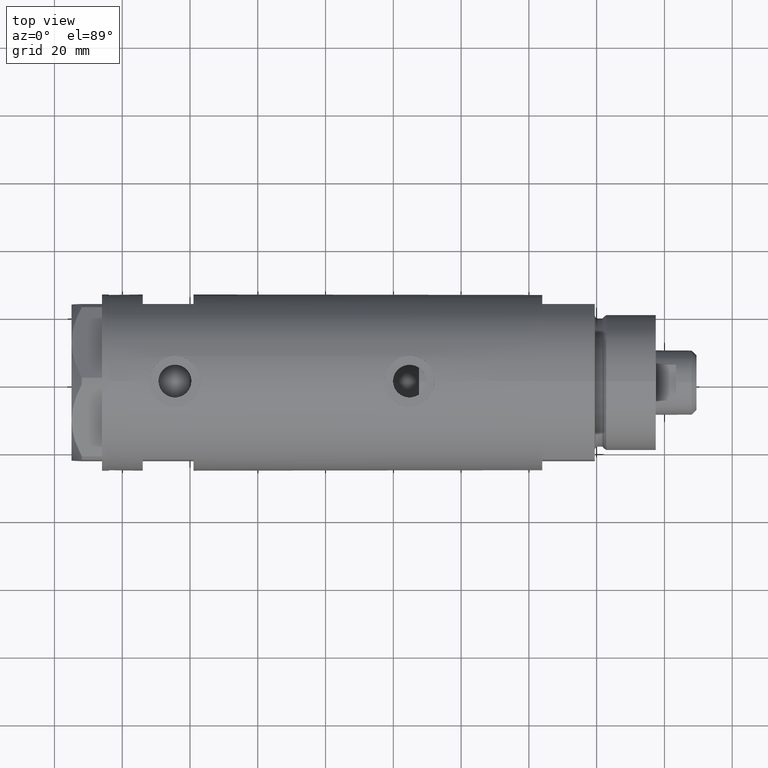
[diagram: clean part render]
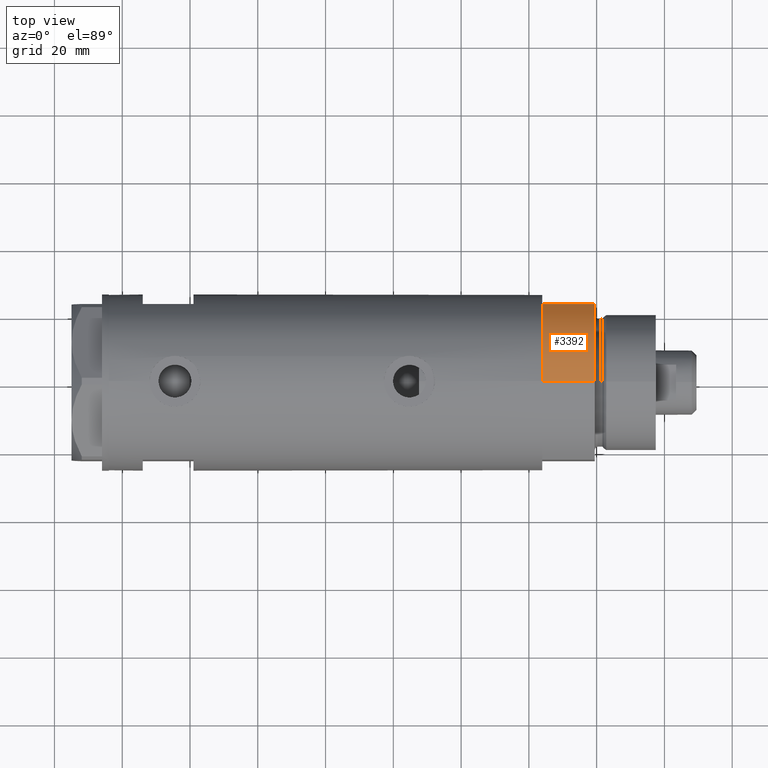
[diagram: same view with one face highlighted and labeled with its STEP entity id]
A machine part, top view. The second image highlights one B-rep face of the part: STEP entity #3392.
In plain terms, the highlighted cylindrical surface (partial cylindrical patch) has radius 26 mm, axis along (-1, -0, 0).
Its self-contained STEP definition (entity closure, byte-faithful):
#291 = EDGE_CURVE ( 'NONE', #4224, #1183, #1976, .T. ) ;
#598 = CARTESIAN_POINT ( 'NONE',  ( -26.00000000000000355, 0.000000000000000000, 0.000000000000000000 ) ) ;
#1121 = CARTESIAN_POINT ( 'NONE',  ( -12.12435565298214613, 23.00000000000000355, 15.50000000000000000 ) ) ;
#1127 = ORIENTED_EDGE ( 'NONE', *, *, #291, .F. ) ;
#1183 = VERTEX_POINT ( 'NONE', #598 ) ;
#1185 = CARTESIAN_POINT ( 'NONE',  ( 0.000000000000000000, 0.000000000000000000, 15.50000000000000000 ) ) ;
#1236 = CIRCLE ( 'NONE', #5418, 26.00000000000000355 ) ;
#1697 = CARTESIAN_POINT ( 'NONE',  ( 0.000000000000000000, 0.000000000000000000, 0.000000000000000000 ) ) ;
#1746 = EDGE_CURVE ( 'NONE', #5291, #1183, #1236, .T. ) ;
#1976 = LINE ( 'NONE', #2828, #3529 ) ;
#2234 = CARTESIAN_POINT ( 'NONE',  ( -12.12435565298215145, 23.00000000000000355, 0.000000000000000000 ) ) ;
#2263 = CARTESIAN_POINT ( 'NONE',  ( 0.000000000000000000, 0.000000000000000000, 15.50000000000000000 ) ) ;
#2323 = AXIS2_PLACEMENT_3D ( 'NONE', #2263, #6164, #5164 ) ;
#2341 = AXIS2_PLACEMENT_3D ( 'NONE', #1185, #5540, #6058 ) ;
#2350 = DIRECTION ( 'NONE',  ( -0.000000000000000000, -0.000000000000000000, -1.000000000000000000 ) ) ;
#2351 = LINE ( 'NONE', #5798, #5737 ) ;
#2828 = CARTESIAN_POINT ( 'NONE',  ( -26.00000000000000355, 0.000000000000000000, 15.50000000000000000 ) ) ;
#3014 = ORIENTED_EDGE ( 'NONE', *, *, #4095, .F. ) ;
#3172 = FACE_OUTER_BOUND ( 'NONE', #5024, .T. ) ;
#3221 = ORIENTED_EDGE ( 'NONE', *, *, #5834, .F. ) ;
#3334 = CIRCLE ( 'NONE', #2323, 26.00000000000000355 ) ;
#3392 = ADVANCED_FACE ( 'NONE', ( #3172 ), #4036, .T. ) ;
#3503 = VERTEX_POINT ( 'NONE', #1121 ) ;
#3529 = VECTOR ( 'NONE', #2350, 1000.000000000000000 ) ;
#3584 = DIRECTION ( 'NONE',  ( 0.000000000000000000, 0.000000000000000000, 1.000000000000000000 ) ) ;
#3614 = DIRECTION ( 'NONE',  ( 1.000000000000000000, 0.000000000000000000, 0.000000000000000000 ) ) ;
#4036 = CYLINDRICAL_SURFACE ( 'NONE', #2341, 26.00000000000000355 ) ;
#4095 = EDGE_CURVE ( 'NONE', #3503, #4224, #3334, .T. ) ;
#4224 = VERTEX_POINT ( 'NONE', #6191 ) ;
#5024 = EDGE_LOOP ( 'NONE', ( #1127, #3014, #3221, #6320 ) ) ;
#5164 = DIRECTION ( 'NONE',  ( 1.000000000000000000, 0.000000000000000000, 0.000000000000000000 ) ) ;
#5291 = VERTEX_POINT ( 'NONE', #2234 ) ;
#5418 = AXIS2_PLACEMENT_3D ( 'NONE', #1697, #3584, #3614 ) ;
#5540 = DIRECTION ( 'NONE',  ( -0.000000000000000000, -0.000000000000000000, -1.000000000000000000 ) ) ;
#5737 = VECTOR ( 'NONE', #5891, 1000.000000000000000 ) ;
#5798 = CARTESIAN_POINT ( 'NONE',  ( -12.12435565298215145, 23.00000000000000355, 0.000000000000000000 ) ) ;
#5834 = EDGE_CURVE ( 'NONE', #5291, #3503, #2351, .T. ) ;
#5891 = DIRECTION ( 'NONE',  ( -0.000000000000000000, -0.000000000000000000, 1.000000000000000000 ) ) ;
#6058 = DIRECTION ( 'NONE',  ( -1.000000000000000000, 0.000000000000000000, 0.000000000000000000 ) ) ;
#6164 = DIRECTION ( 'NONE',  ( 0.000000000000000000, 0.000000000000000000, 1.000000000000000000 ) ) ;
#6191 = CARTESIAN_POINT ( 'NONE',  ( -26.00000000000000355, 0.000000000000000000, 15.50000000000000000 ) ) ;
#6320 = ORIENTED_EDGE ( 'NONE', *, *, #1746, .T. ) ;